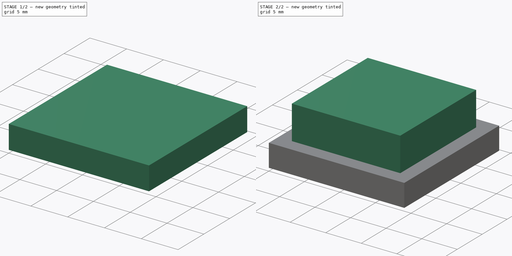
[diagram: build sequence overview — one tinted view per stage of 2, left to right]
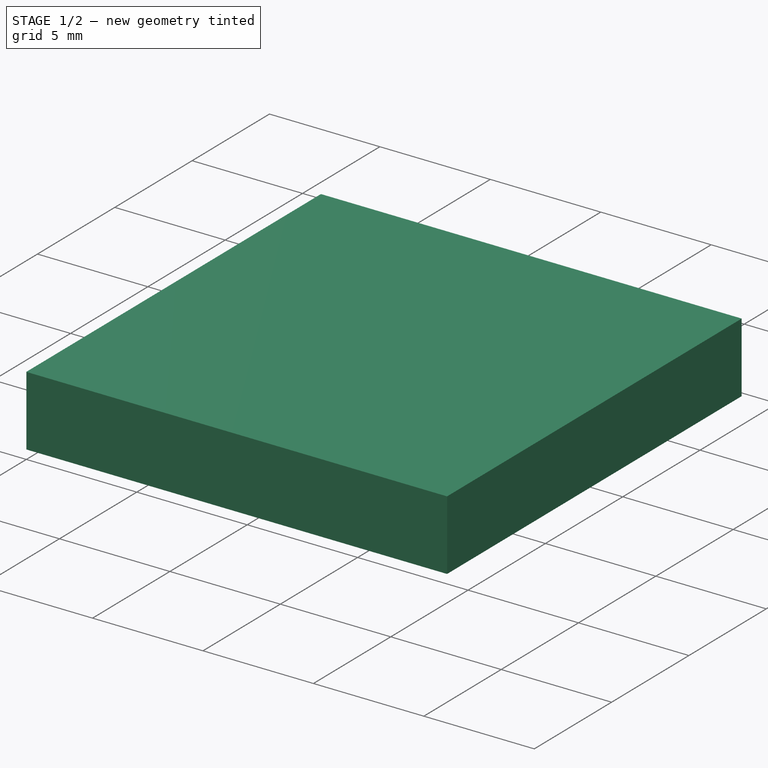
[diagram: stage 1 of 2 — iso view after this stage's code; geometry added in this stage tinted green]
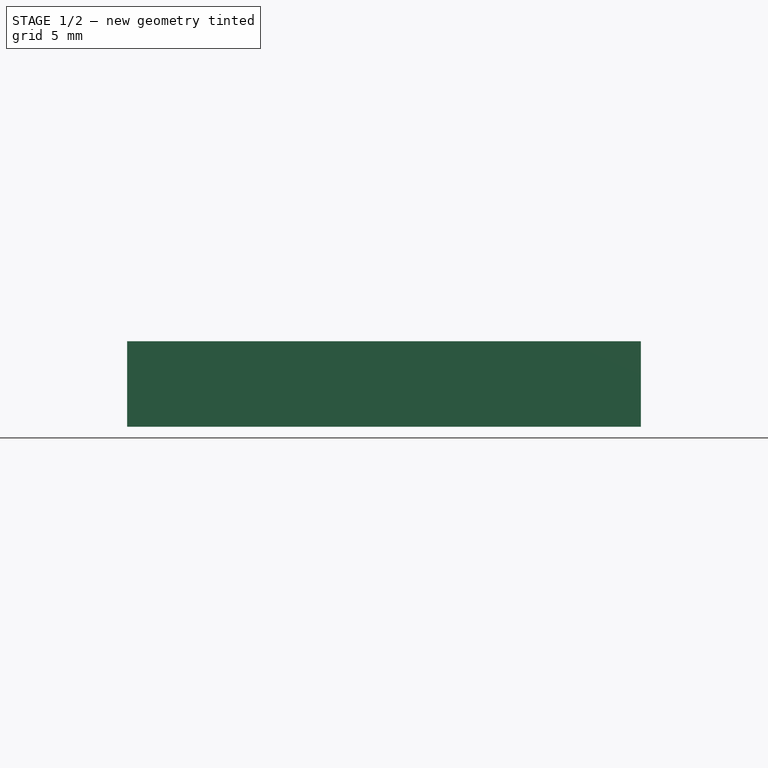
[diagram: stage 1 of 2 — front view after this stage's code; geometry added in this stage tinted green]
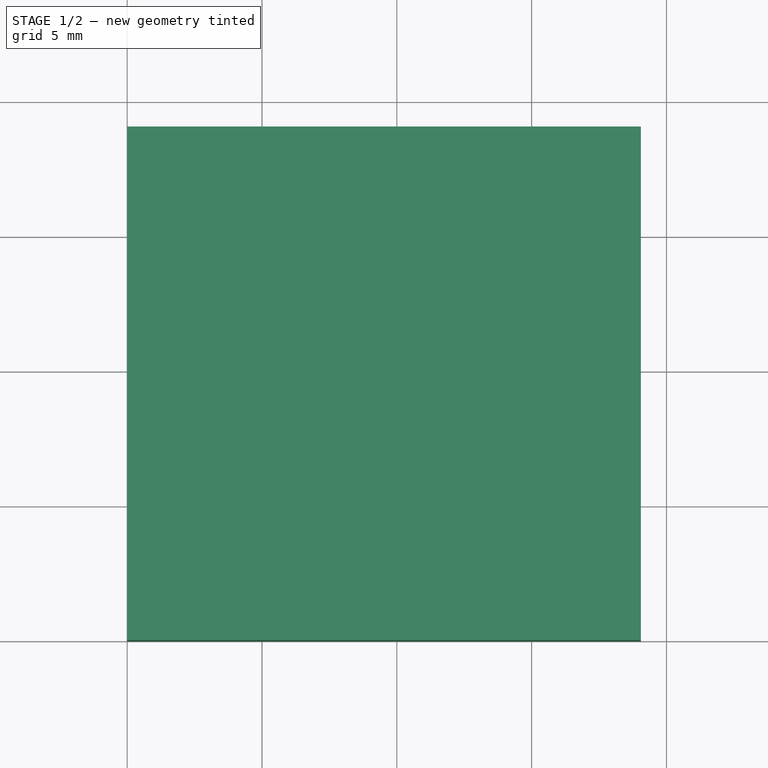
[diagram: stage 1 of 2 — top view after this stage's code; geometry added in this stage tinted green]
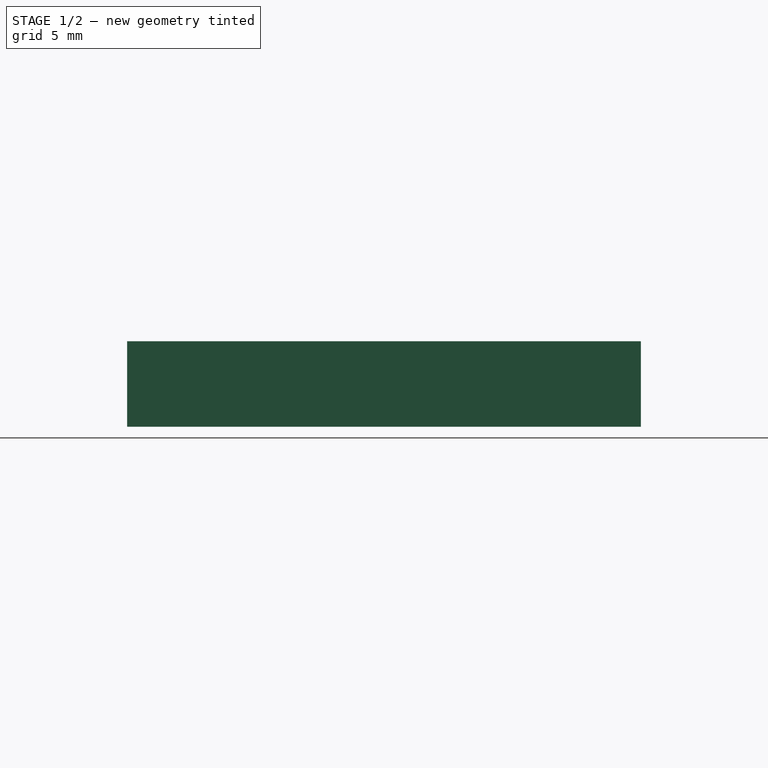
[diagram: stage 1 of 2 — right view after this stage's code; geometry added in this stage tinted green]
FCSTD DOCUMENT  (FreeCAD 0.14R3702 (Git))
Label: El-cap-imperial
License: CC-BY 3.0
LicenseURL: http://creativecommons.org/licenses/by/3.0/
objects: Sketcher::SketchObject×2, PartDesign::Pad×2
note: 6 computed .brp shape members not serialized (recipe doc carries the construction recipe); baked Part::Feature solids carry a one-line shape summary decoded from their .brp

FEATURE [Sketcher::SketchObject] Sketch
  sketch-geometry (4):
    g0: LineSegment StartX=0 StartY=0 StartZ=0 EndX=19.05 EndY=0 EndZ=0
    g1: LineSegment StartX=19.05 StartY=0 StartZ=0 EndX=19.05 EndY=19.05 EndZ=0
    g2: LineSegment StartX=19.05 StartY=19.05 StartZ=0 EndX=0 EndY=19.05 EndZ=0
    g3: LineSegment StartX=0 StartY=19.05 StartZ=0 EndX=0 EndY=0 EndZ=0
  constraints (11):
    c: Coincident(g0,g1)
    c: Coincident(g1,g2)
    c: Coincident(g2,g3)
    c: Coincident(g3,g0)
    c: Horizontal(g0)
    c: Horizontal(g2)
    c: Vertical(g1)
    c: Vertical(g3)
    c: Coincident(g0,g-1)
    c: Distance(g0) = 19.05
    c: Distance(g1) = 19.05
FEATURE [PartDesign::Pad] Pad
  Length = 3.175
  Length2 = 100
  Sketch = -> Sketch
  Type = 0
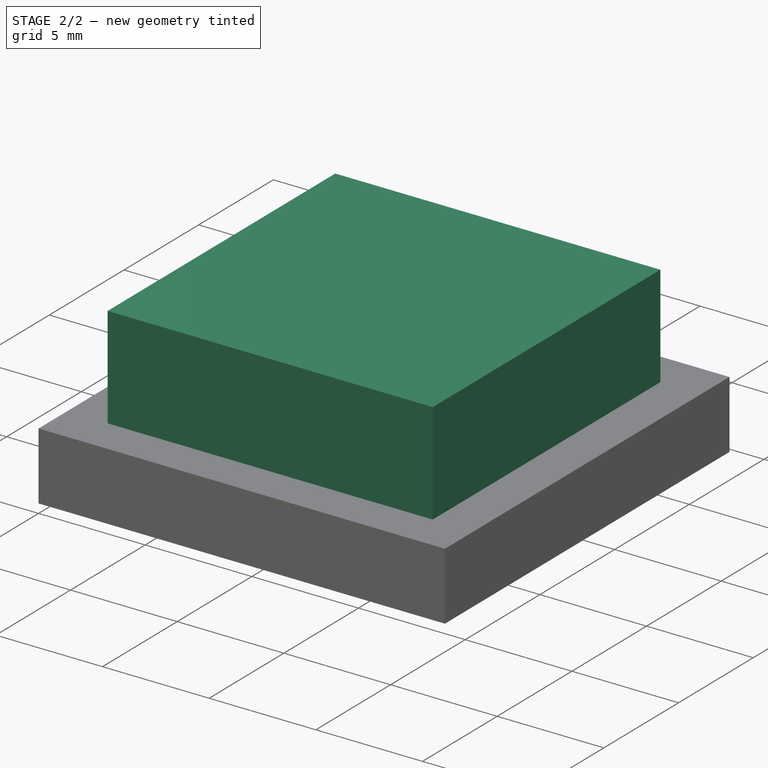
[diagram: stage 2 of 2 — iso view after this stage's code; geometry added in this stage tinted green]
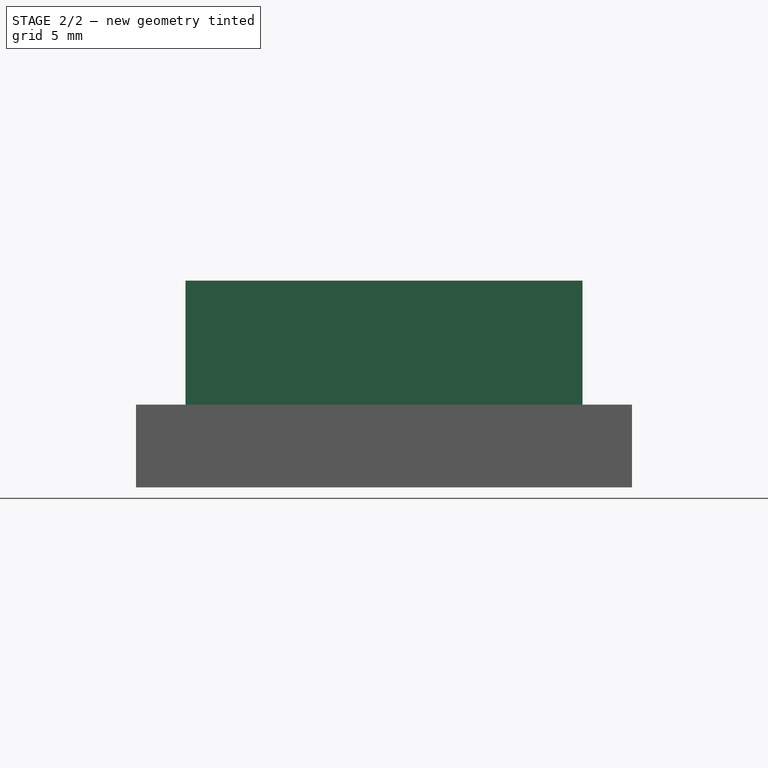
[diagram: stage 2 of 2 — front view after this stage's code; geometry added in this stage tinted green]
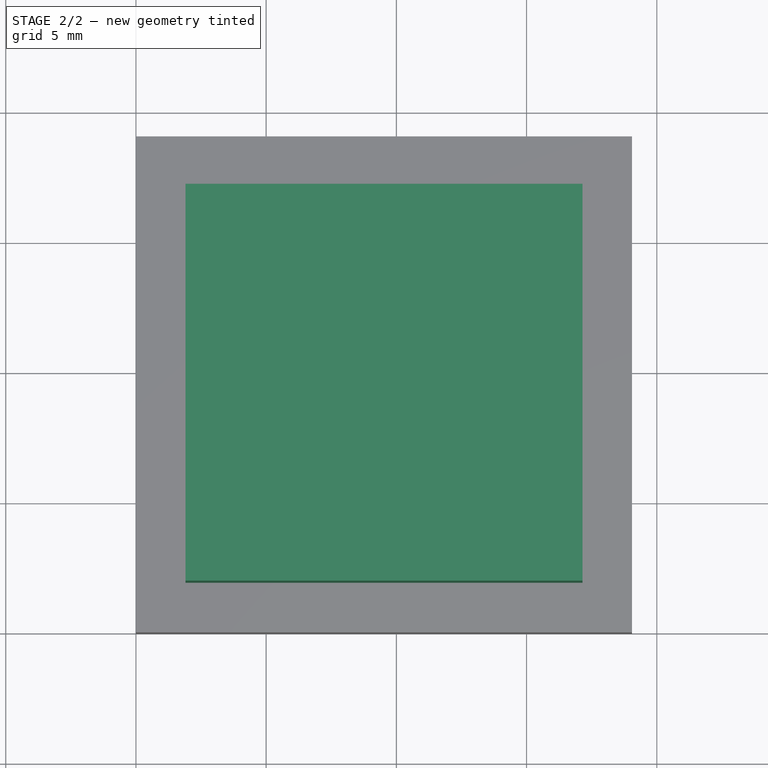
[diagram: stage 2 of 2 — top view after this stage's code; geometry added in this stage tinted green]
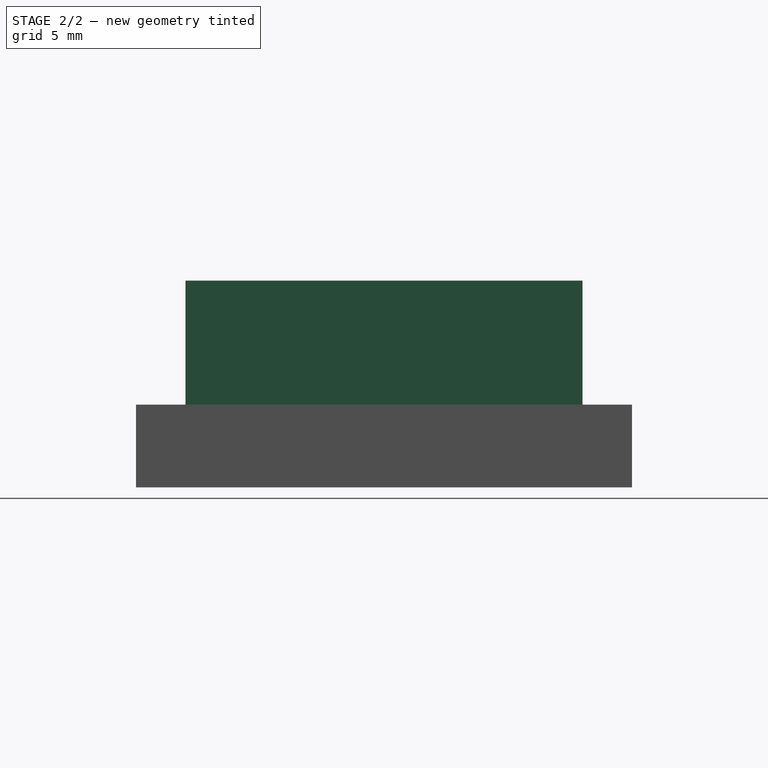
[diagram: stage 2 of 2 — right view after this stage's code; geometry added in this stage tinted green]
FEATURE [Sketcher::SketchObject] Sketch001
  Placement = pos=(0,0,3.175) rot=(0,0,1;0rad)
  Support = -> Pad [Face6]
  sketch-geometry (4):
    g0: LineSegment StartX=1.905 StartY=1.905 StartZ=0 EndX=17.145 EndY=1.905 EndZ=0
    g1: LineSegment StartX=17.145 StartY=1.905 StartZ=0 EndX=17.145 EndY=17.145 EndZ=0
    g2: LineSegment StartX=17.145 StartY=17.145 StartZ=0 EndX=1.905 EndY=17.145 EndZ=0
    g3: LineSegment StartX=1.905 StartY=17.145 StartZ=0 EndX=1.905 EndY=1.905 EndZ=0
  constraints (12):
    c: Coincident(g0,g1)
    c: Coincident(g1,g2)
    c: Coincident(g2,g3)
    c: Coincident(g3,g0)
    c: Horizontal(g0)
    c: Horizontal(g2)
    c: Vertical(g1)
    c: Vertical(g3)
    c: Distance(g1) = 15.24
    c: Distance(g0) = 15.24
    c: DistanceX(g-1,g0) = 1.905
    c: DistanceY(g-1,g0) = 1.905
FEATURE [PartDesign::Pad] Pad001
  Length = 4.7625
  Length2 = 100
  Sketch = -> Sketch001
  Type = 0
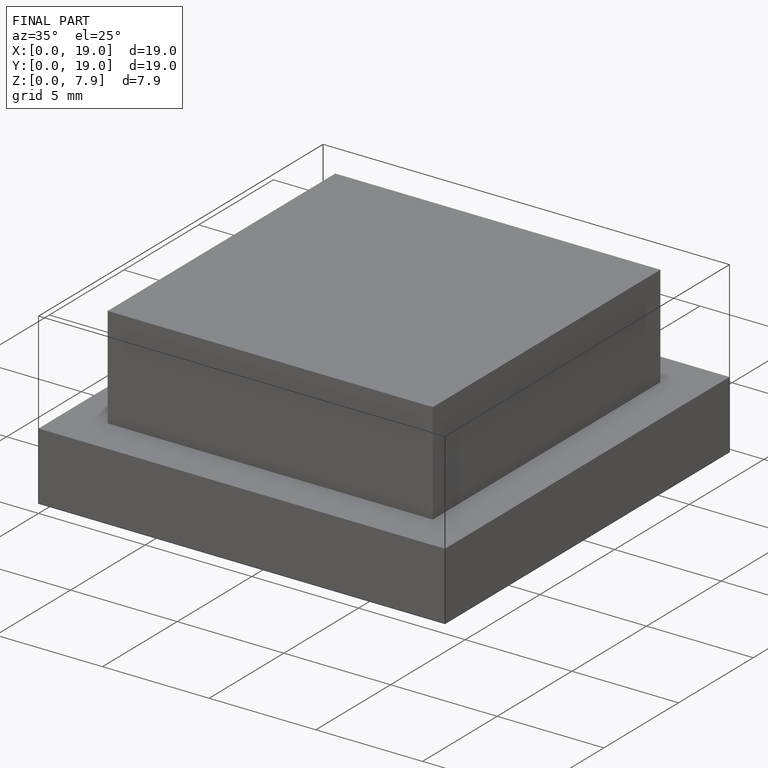
[diagram: finished part — iso view with bounding-box wireframe]
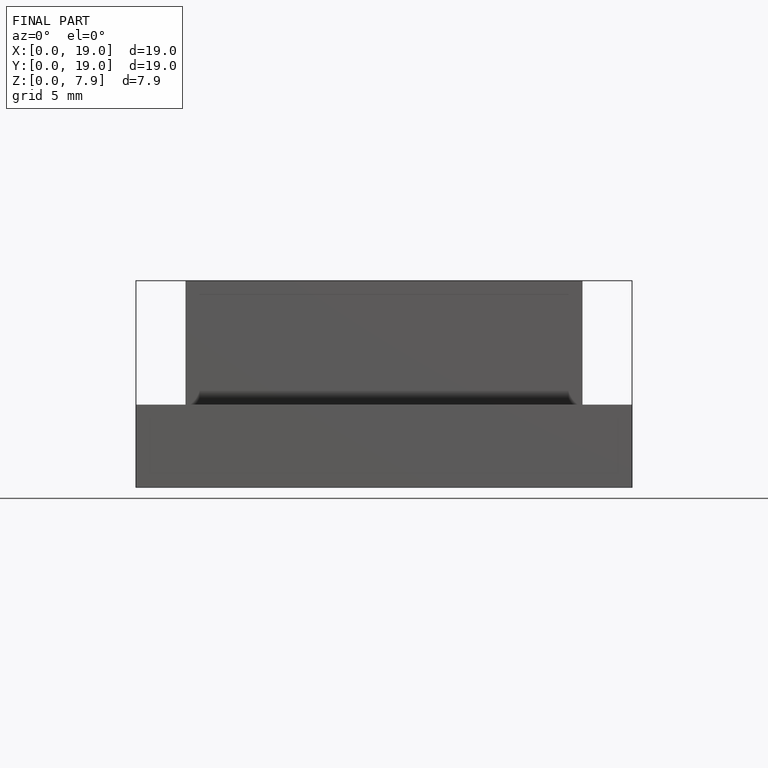
[diagram: finished part — front view with bounding-box wireframe]
